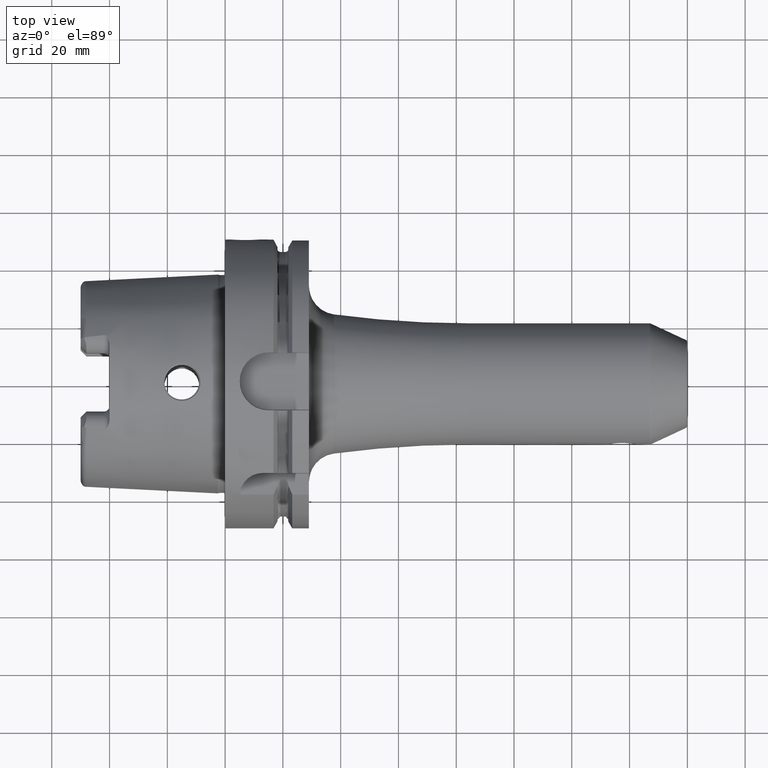
[diagram: clean part render]
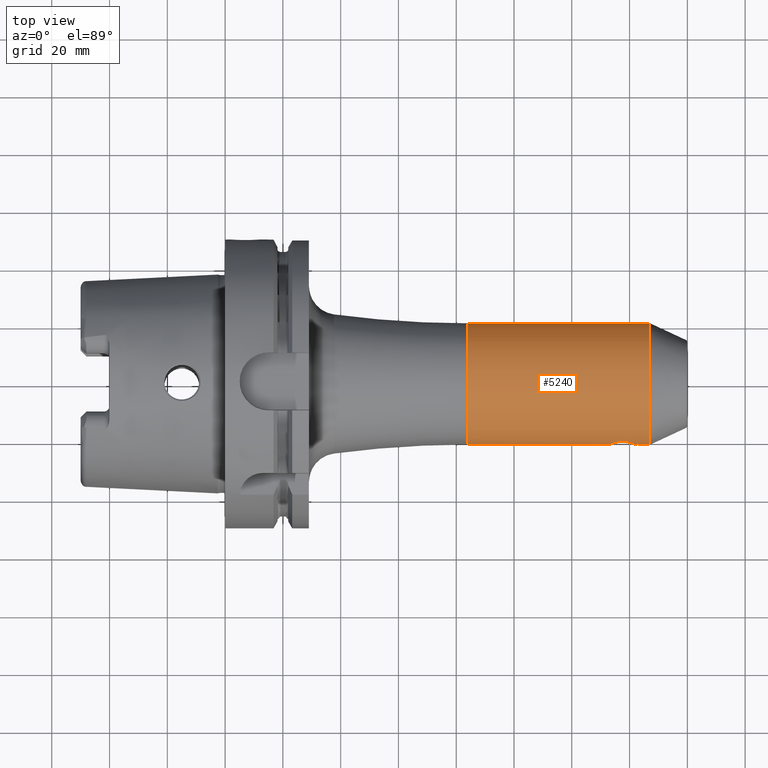
[diagram: same view with one face highlighted and labeled with its STEP entity id]
A machine part, top view. The second image highlights one B-rep face of the part: STEP entity #5240.
In plain terms, the highlighted cylindrical surface (partial cylindrical patch) has radius 21 mm, axis along (1, 0, 0).
Its self-contained STEP definition (entity closure, byte-faithful):
#1840=CARTESIAN_POINT('',(8.4E1,0.E0,0.E0));
#1841=DIRECTION('',(1.E0,0.E0,0.E0));
#1842=DIRECTION('',(0.E0,1.E0,0.E0));
#1843=AXIS2_PLACEMENT_3D('',#1840,#1841,#1842);
#1845=CARTESIAN_POINT('',(1.469112638143E2,0.E0,0.E0));
#1846=DIRECTION('',(-1.E0,0.E0,0.E0));
#1847=DIRECTION('',(0.E0,-1.E0,0.E0));
#1848=AXIS2_PLACEMENT_3D('',#1845,#1846,#1847);
#1850=CARTESIAN_POINT('',(1.324E2,-2.1E1,0.E0));
#1851=CARTESIAN_POINT('',(1.324E2,-2.1E1,2.035157222089E-1));
#1852=CARTESIAN_POINT('',(1.324241299328E2,-2.099411940378E1,
6.081872587772E-1));
#1853=CARTESIAN_POINT('',(1.325335926504E2,-2.096780533076E1,1.212570308740E0));
#1854=CARTESIAN_POINT('',(1.327145852072E2,-2.092547543767E1,1.798980690942E0));
#1855=CARTESIAN_POINT('',(1.329671408938E2,-2.086890299836E1,2.364499976261E0));
#1856=CARTESIAN_POINT('',(1.332862824918E2,-2.080157931121E1,2.895483522127E0));
#1857=CARTESIAN_POINT('',(1.336715147780E2,-2.072661254263E1,3.388574827613E0));
#1858=CARTESIAN_POINT('',(1.341116793888E2,-2.064944755066E1,3.828725646517E0));
#1859=CARTESIAN_POINT('',(1.346050390192E2,-2.057388507444E1,4.214076455528E0));
#1860=CARTESIAN_POINT('',(1.351359798671E2,-2.050558778954E1,4.533124186790E0));
#1861=CARTESIAN_POINT('',(1.357021364274E2,-2.044778643857E1,4.785851770007E0));
#1862=CARTESIAN_POINT('',(1.362880815200E2,-2.040443495076E1,4.966500173050E0));
#1863=CARTESIAN_POINT('',(1.368911383955E2,-2.037738415446E1,5.075806270683E0));
#1864=CARTESIAN_POINT('',(1.374997505510E2,-2.036826381507E1,5.112093478062E0));
#1865=CARTESIAN_POINT('',(1.381087760056E2,-2.037738066391E1,5.075819797889E0));
#1866=CARTESIAN_POINT('',(1.387115114237E2,-2.040441168170E1,4.966595913982E0));
#1867=CARTESIAN_POINT('',(1.392977324674E2,-2.044777371230E1,4.785905433998E0));
#1868=CARTESIAN_POINT('',(1.398637150762E2,-2.050555346032E1,4.533278593184E0));
#1869=CARTESIAN_POINT('',(1.403947922431E2,-2.057386033313E1,4.214197791514E0));
#1870=CARTESIAN_POINT('',(1.408881192996E2,-2.064941499609E1,3.828897764197E0));
#1871=CARTESIAN_POINT('',(1.413283025409E2,-2.072657821199E1,3.388788349663E0));
#1872=CARTESIAN_POINT('',(1.417136105775E2,-2.080155773697E1,2.895631352476E0));
#1873=CARTESIAN_POINT('',(1.420326881750E2,-2.086886575951E1,2.364831640056E0));
#1874=CARTESIAN_POINT('',(1.422853745046E2,-2.092546591003E1,1.799099027966E0));
#1875=CARTESIAN_POINT('',(1.424663552197E2,-2.096779302447E1,1.212786707635E0));
#1876=CARTESIAN_POINT('',(1.425758764912E2,-2.099412087660E1,
6.081960721384E-1));
#1877=CARTESIAN_POINT('',(1.426E2,-2.1E1,2.035155560681E-1));
#1878=CARTESIAN_POINT('',(1.426E2,-2.1E1,0.E0));
#1885=DIRECTION('',(-1.E0,0.E0,0.E0));
#1886=VECTOR('',#1885,4.84E1);
#1887=CARTESIAN_POINT('',(1.324E2,-2.1E1,0.E0));
#1888=LINE('',#1887,#1886);
#1919=DIRECTION('',(-1.E0,0.E0,-2.442810314253E-14));
#1920=VECTOR('',#1919,4.311263814300E0);
#1921=CARTESIAN_POINT('',(1.469112638143E2,-2.1E1,1.030774627392E-13));
#1922=LINE('',#1921,#1920);
#1928=DIRECTION('',(-1.E0,0.E0,0.E0));
#1929=VECTOR('',#1928,6.291126381430E1);
#1930=CARTESIAN_POINT('',(1.469112638143E2,2.1E1,-1.177092124190E-13));
#1931=LINE('',#1930,#1929);
#3315=CARTESIAN_POINT('',(1.469112638143E2,2.1E1,0.E0));
#3316=CARTESIAN_POINT('',(1.469112638143E2,-2.1E1,0.E0));
#3317=VERTEX_POINT('',#3315);
#3318=VERTEX_POINT('',#3316);
#3333=VERTEX_POINT('',#1850);
#3334=VERTEX_POINT('',#1878);
#3337=CARTESIAN_POINT('',(8.4E1,2.1E1,0.E0));
#3338=CARTESIAN_POINT('',(8.4E1,-2.1E1,0.E0));
#3339=VERTEX_POINT('',#3337);
#3340=VERTEX_POINT('',#3338);
#5222=CARTESIAN_POINT('',(2.245E1,0.E0,0.E0));
#5223=DIRECTION('',(1.E0,0.E0,0.E0));
#5224=DIRECTION('',(0.E0,-1.E0,0.E0));
#5225=AXIS2_PLACEMENT_3D('',#5222,#5223,#5224);
#5226=CYLINDRICAL_SURFACE('',#5225,2.1E1);
#5227=ORIENTED_EDGE('',*,*,#5216,.F.);
#5229=ORIENTED_EDGE('',*,*,#5228,.F.);
#5231=ORIENTED_EDGE('',*,*,#5230,.F.);
#5233=ORIENTED_EDGE('',*,*,#5232,.T.);
#5235=ORIENTED_EDGE('',*,*,#5234,.F.);
#5237=ORIENTED_EDGE('',*,*,#5236,.T.);
#5238=EDGE_LOOP('',(#5227,#5229,#5231,#5233,#5235,#5237));
#5239=FACE_OUTER_BOUND('',#5238,.F.);
#5240=ADVANCED_FACE('',(#5239),#5226,.T.);
#1844=CIRCLE('',#1843,2.1E1);
#1849=CIRCLE('',#1848,2.1E1);
#1879=B_SPLINE_CURVE_WITH_KNOTS('',3,(#1850,#1851,#1852,#1853,#1854,#1855,#1856,
#1857,#1858,#1859,#1860,#1861,#1862,#1863,#1864,#1865,#1866,#1867,#1868,#1869,
#1870,#1871,#1872,#1873,#1874,#1875,#1876,#1877,#1878),.UNSPECIFIED.,.F.,.F.,(4,
1,1,1,1,1,1,1,1,1,1,1,1,1,1,1,1,1,1,1,1,1,1,1,1,1,4),(0.E0,3.846153846154E-2,
7.692307692308E-2,1.153846153846E-1,1.538461538462E-1,1.923076923077E-1,
2.307692307692E-1,2.692307692308E-1,3.076923076923E-1,3.461538461538E-1,
3.846153846154E-1,4.230769230769E-1,4.615384615385E-1,5.E-1,5.384615384615E-1,
5.769230769231E-1,6.153846153846E-1,6.538461538462E-1,6.923076923077E-1,
7.307692307692E-1,7.692307692308E-1,8.076923076923E-1,8.461538461538E-1,
8.846153846154E-1,9.230769230769E-1,9.615384615385E-1,1.E0),.UNSPECIFIED.);
#5216=EDGE_CURVE('',#3339,#3340,#1844,.T.);
#5228=EDGE_CURVE('',#3317,#3339,#1931,.T.);
#5230=EDGE_CURVE('',#3318,#3317,#1849,.T.);
#5232=EDGE_CURVE('',#3318,#3334,#1922,.T.);
#5234=EDGE_CURVE('',#3333,#3334,#1879,.T.);
#5236=EDGE_CURVE('',#3333,#3340,#1888,.T.);